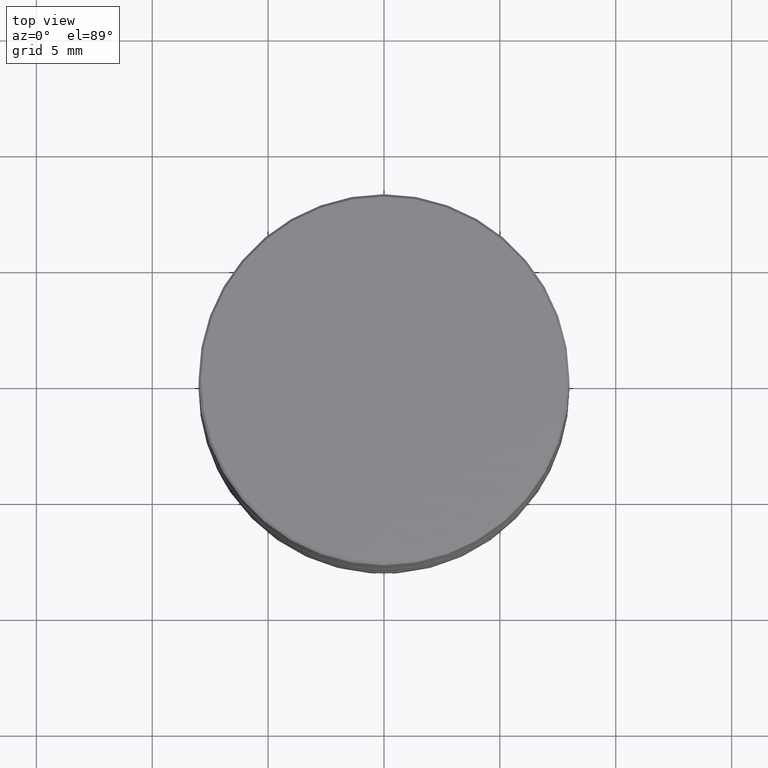
[diagram: clean part render]
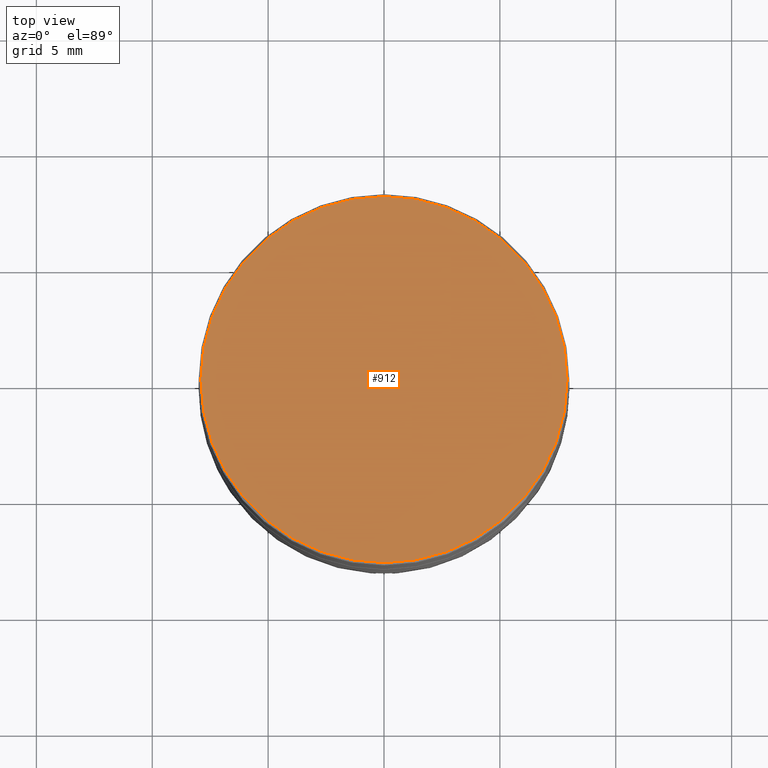
[diagram: same view with one face highlighted and labeled with its STEP entity id]
A machine part, top view. The second image highlights one B-rep face of the part: STEP entity #912.
In plain terms, the highlighted planar face has unit normal (0, -0, 1).
Its self-contained STEP definition (entity closure, byte-faithful):
#18 = ORIENTED_EDGE ( 'NONE', *, *, #801, .T. ) ;
#108 = AXIS2_PLACEMENT_3D ( 'NONE', #286, #933, #788 ) ;
#159 = CARTESIAN_POINT ( 'NONE',  ( 0.000000000000000000, 0.000000000000000000, 0.000000000000000000 ) ) ;
#286 = CARTESIAN_POINT ( 'NONE',  ( 0.000000000000000000, 0.000000000000000000, 0.000000000000000000 ) ) ;
#389 = CIRCLE ( 'NONE', #108, 7.900000000000003908 ) ;
#391 = VERTEX_POINT ( 'NONE', #396 ) ;
#396 = CARTESIAN_POINT ( 'NONE',  ( -7.900000000000003908, 0.000000000000000000, 0.000000000000000000 ) ) ;
#463 = FACE_OUTER_BOUND ( 'NONE', #844, .T. ) ;
#607 = AXIS2_PLACEMENT_3D ( 'NONE', #973, #1458, #1359 ) ;
#650 = DIRECTION ( 'NONE',  ( 1.000000000000000000, 0.000000000000000000, 0.000000000000000000 ) ) ;
#727 = PLANE ( 'NONE',  #607 ) ;
#788 = DIRECTION ( 'NONE',  ( 1.000000000000000000, 0.000000000000000000, 0.000000000000000000 ) ) ;
#801 = EDGE_CURVE ( 'NONE', #391, #1526, #389, .T. ) ;
#844 = EDGE_LOOP ( 'NONE', ( #18, #1381 ) ) ;
#912 = ADVANCED_FACE ( 'NONE', ( #463 ), #727, .T. ) ;
#933 = DIRECTION ( 'NONE',  ( -0.000000000000000000, -0.000000000000000000, 1.000000000000000000 ) ) ;
#973 = CARTESIAN_POINT ( 'NONE',  ( 0.000000000000000000, 0.000000000000000000, 0.000000000000000000 ) ) ;
#1132 = CARTESIAN_POINT ( 'NONE',  ( 7.900000000000003908, 9.735942053221460844E-16, 0.000000000000000000 ) ) ;
#1142 = CIRCLE ( 'NONE', #1426, 7.900000000000003908 ) ;
#1272 = DIRECTION ( 'NONE',  ( -0.000000000000000000, -0.000000000000000000, 1.000000000000000000 ) ) ;
#1359 = DIRECTION ( 'NONE',  ( 1.000000000000000000, 0.000000000000000000, 0.000000000000000000 ) ) ;
#1381 = ORIENTED_EDGE ( 'NONE', *, *, #1627, .T. ) ;
#1426 = AXIS2_PLACEMENT_3D ( 'NONE', #159, #1272, #650 ) ;
#1458 = DIRECTION ( 'NONE',  ( 0.000000000000000000, -0.000000000000000000, 1.000000000000000000 ) ) ;
#1526 = VERTEX_POINT ( 'NONE', #1132 ) ;
#1627 = EDGE_CURVE ( 'NONE', #1526, #391, #1142, .T. ) ;